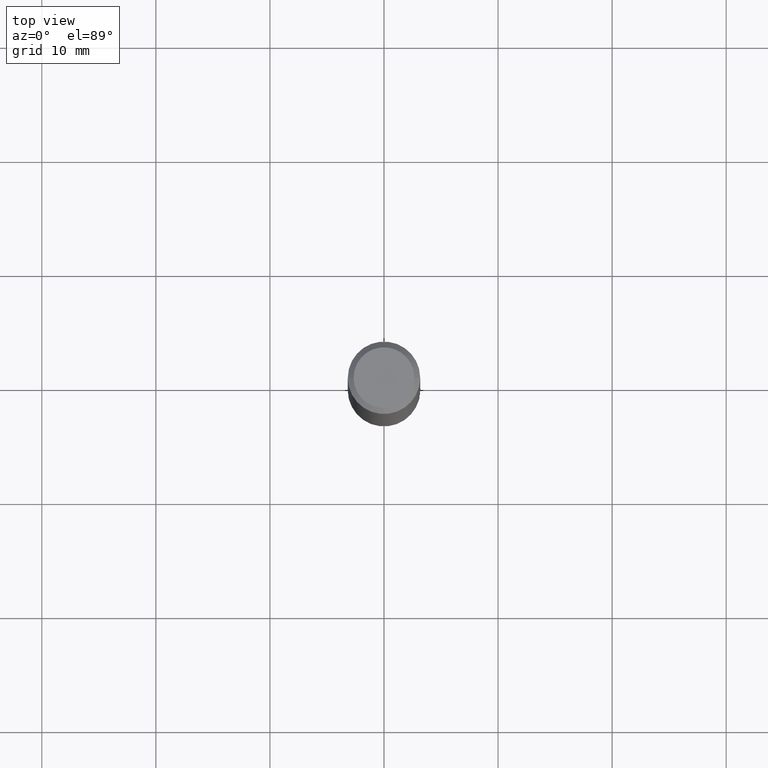
[diagram: clean part render]
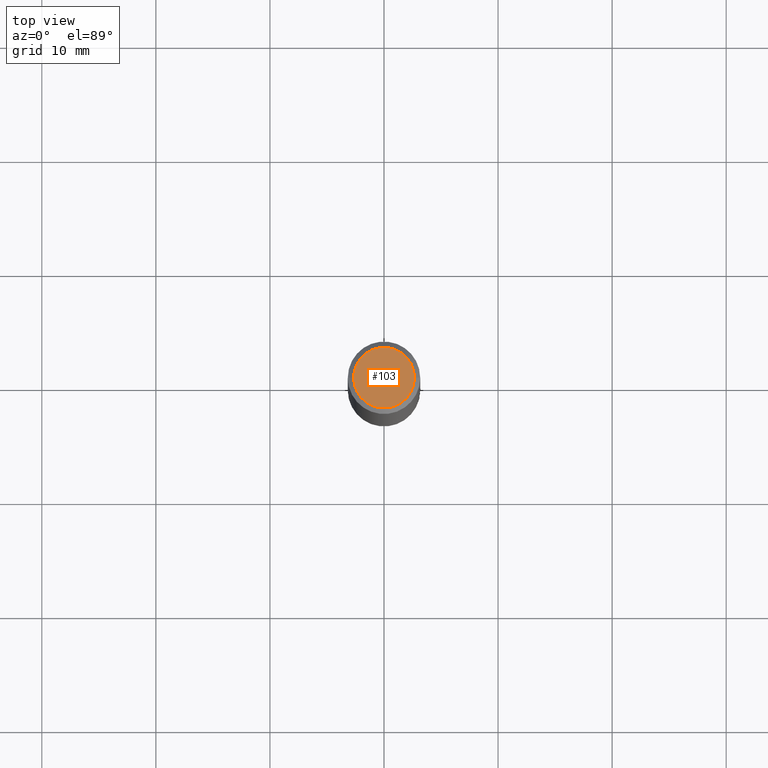
[diagram: same view with one face highlighted and labeled with its STEP entity id]
A machine part, top view. The second image highlights one B-rep face of the part: STEP entity #103.
In plain terms, the highlighted planar face has unit normal (0, -0, -1).
Its self-contained STEP definition (entity closure, byte-faithful):
#3 = AXIS2_PLACEMENT_3D ( 'NONE', #326, #288, #373 ) ;
#4 = VERTEX_POINT ( 'NONE', #46 ) ;
#29 = CARTESIAN_POINT ( 'NONE',  ( 7.332110811570563480E-16, 0.1049999999999997741, -3.644712843334792919E-16 ) ) ;
#46 = CARTESIAN_POINT ( 'NONE',  ( -0.1049999999999997741, 7.681258945454874055E-16, 4.268512490095161194E-18 ) ) ;
#74 = DIRECTION ( 'NONE',  ( 2.438088387897960049E-29, -3.491481338843145188E-15, -1.000000000000000000 ) ) ;
#94 = CARTESIAN_POINT ( 'NONE',  ( -1.043851414335219820E-46, 1.490343170380447200E-32, 4.268512490100411279E-18 ) ) ;
#96 = PLANE ( 'NONE',  #275 ) ;
#98 = ORIENTED_EDGE ( 'NONE', *, *, #367, .T. ) ;
#103 = ADVANCED_FACE ( 'NONE', ( #307 ), #96, .F. ) ;
#134 = CARTESIAN_POINT ( 'NONE',  ( 0.1049999999999997741, -8.238720831321559881E-16, 4.268512490105855498E-18 ) ) ;
#205 = AXIS2_PLACEMENT_3D ( 'NONE', #94, #215, #277 ) ;
#215 = DIRECTION ( 'NONE',  ( -2.445468806185136597E-29, 3.491481338843145583E-15, 1.000000000000000000 ) ) ;
#243 = CIRCLE ( 'NONE', #205, 0.1049999999999997741 ) ;
#251 = ORIENTED_EDGE ( 'NONE', *, *, #283, .T. ) ;
#266 = VERTEX_POINT ( 'NONE', #134 ) ;
#275 = AXIS2_PLACEMENT_3D ( 'NONE', #29, #74, #286 ) ;
#277 = DIRECTION ( 'NONE',  ( 1.000000000000000000, -6.982962677686265922E-15, 4.876206205277404679E-29 ) ) ;
#283 = EDGE_CURVE ( 'NONE', #266, #4, #243, .T. ) ;
#286 = DIRECTION ( 'NONE',  ( -1.000000000000000000, 6.982962677686265922E-15, -4.876176775795935793E-29 ) ) ;
#288 = DIRECTION ( 'NONE',  ( -2.445468806185136597E-29, 3.491481338843145583E-15, 1.000000000000000000 ) ) ;
#307 = FACE_OUTER_BOUND ( 'NONE', #415, .T. ) ;
#326 = CARTESIAN_POINT ( 'NONE',  ( -1.043851414335219820E-46, 1.490343170380447200E-32, 4.268512490100411279E-18 ) ) ;
#367 = EDGE_CURVE ( 'NONE', #4, #266, #370, .T. ) ;
#370 = CIRCLE ( 'NONE', #3, 0.1049999999999997741 ) ;
#373 = DIRECTION ( 'NONE',  ( 1.000000000000000000, -6.982962677686265922E-15, 4.876206205277404679E-29 ) ) ;
#415 = EDGE_LOOP ( 'NONE', ( #98, #251 ) ) ;